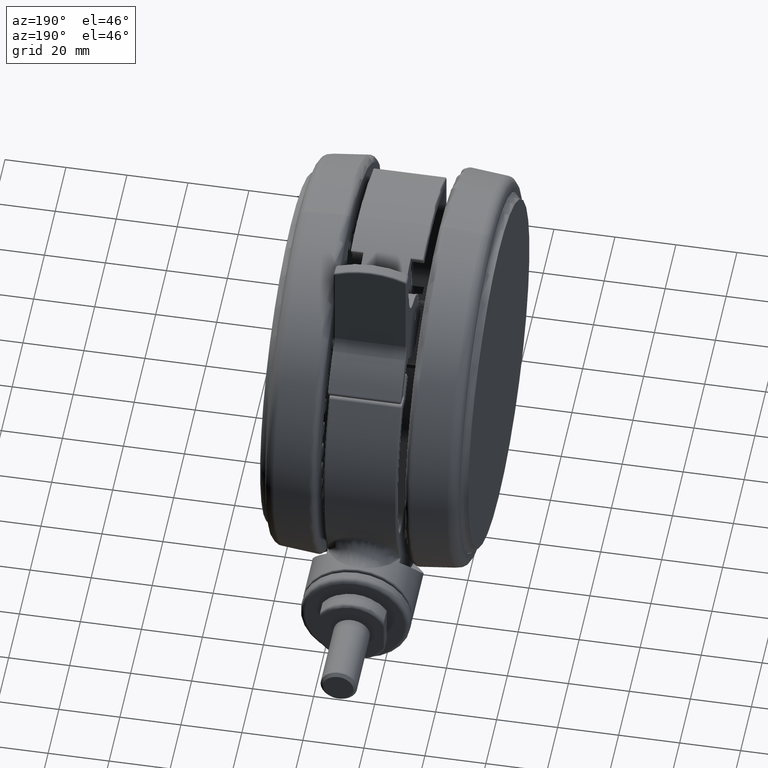
[diagram: clean part render]
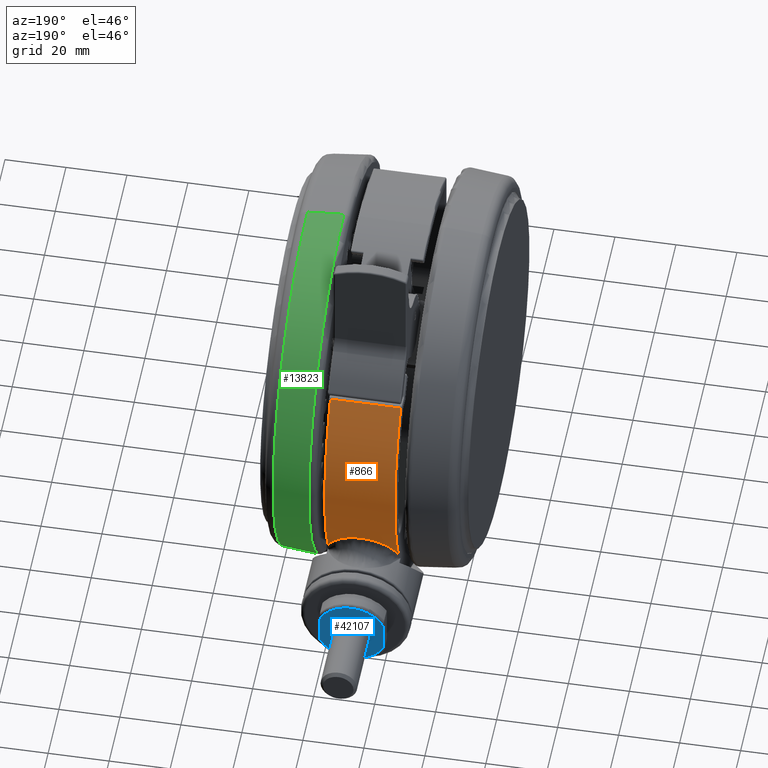
[diagram: same view with three faces highlighted in distinct colors, each labeled with its STEP entity id]
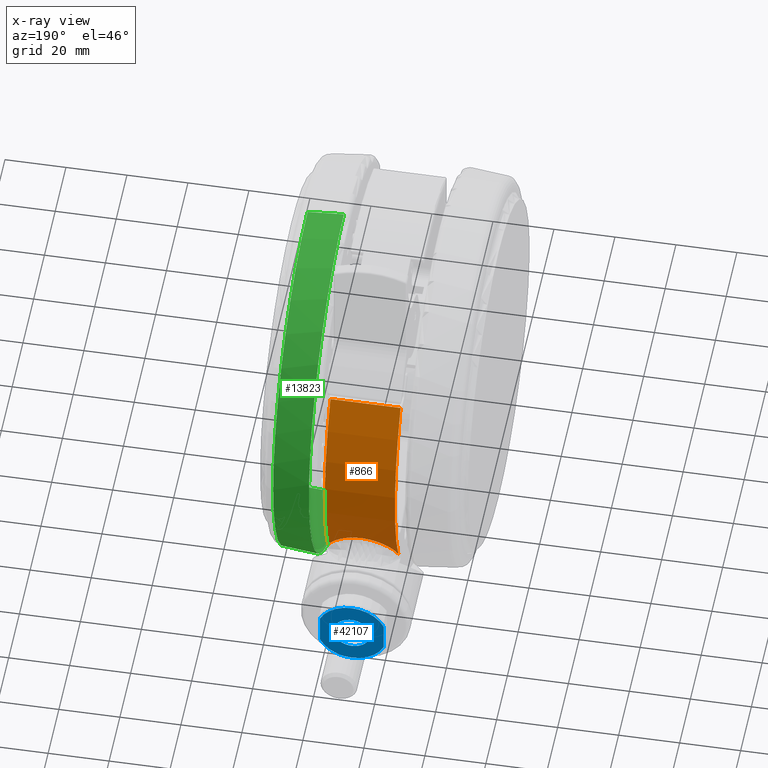
[diagram: x-ray of the same camera — body ghosted, the three highlighted faces saturated]
A machine part, auxiliary view with three faces highlighted in distinct colors.
The next image is the same camera in x-ray (body ghosted, the three faces saturated) — at least one of them is partly hidden behind the body in this view.
Their STEP definitions:

[orange] entity #866 — the highlighted cylindrical surface (partial cylindrical patch) has radius 65 mm, axis along (-1, 0, 0).
#866 = ADVANCED_FACE ( 'NONE', ( #67489 ), #17382, .T. ) ;
#1489 = VECTOR ( 'NONE', #38782, 1000.000000000000000 ) ;
#1585 = VERTEX_POINT ( 'NONE', #12320 ) ;
#3517 = CARTESIAN_POINT ( 'NONE',  ( 27.95437384687145200, 58.68178101843090400, -45.60001317750182900 ) ) ;
#4736 = CARTESIAN_POINT ( 'NONE',  ( 27.79232637209798500, 58.75890123488316200, -22.63798909152732700 ) ) ;
#4983 = CARTESIAN_POINT ( 'NONE',  ( 24.38946645385690500, 60.25139982984629200, -24.26384737465338800 ) ) ;
#5266 = CARTESIAN_POINT ( 'NONE',  ( 20.44288935957102300, 61.70165689065495900, -28.85910942607371200 ) ) ;
#5526 = CARTESIAN_POINT ( 'NONE',  ( 19.52615598186860500, 61.99781944255990900, -36.72101404127205600 ) ) ;
#5790 = CARTESIAN_POINT ( 'NONE',  ( 21.76791565473871500, 61.24679039606800800, -41.44564791617381200 ) ) ;
#6050 = CARTESIAN_POINT ( 'NONE',  ( 25.68911813592593100, 59.70913800842981800, -44.70101322627728300 ) ) ;
#9761 = ORIENTED_EDGE ( 'NONE', *, *, #25516, .T. ) ;
#11328 = CARTESIAN_POINT ( 'NONE',  ( 23.64653828361601000, 60.54676731015368300, -24.82376520894524300 ) ) ;
#11596 = CARTESIAN_POINT ( 'NONE',  ( 20.16148068567649100, 61.79430745747500700, -29.46952685547477200 ) ) ;
#11844 = CARTESIAN_POINT ( 'NONE',  ( 19.58523465069505700, 61.97918219874328100, -36.96602451009528100 ) ) ;
#12096 = CARTESIAN_POINT ( 'NONE',  ( 22.71460384025984800, 60.90410585044376300, -42.54105573440799000 ) ) ;
#12320 = CARTESIAN_POINT ( 'NONE',  ( -35.54687500000000000, 54.41892756876389800, -22.60000000000006900 ) ) ;
#12355 = CARTESIAN_POINT ( 'NONE',  ( 26.86298689317154500, 59.19017779428045100, -45.23463577216099200 ) ) ;
#16269 = DIRECTION ( 'NONE',  ( 0.0000000000000000000, 0.0000000000000000000, 1.000000000000000000 ) ) ;
#17357 = CARTESIAN_POINT ( 'NONE',  ( 27.44541606508240500, 58.92157019464794100, -22.74730794547513200 ) ) ;
#17382 = CYLINDRICAL_SURFACE ( 'NONE', #61781, 65.00000000000000000 ) ;
#17623 = CARTESIAN_POINT ( 'NONE',  ( 22.69148590163013400, 60.91271055391931800, -25.67161477966031700 ) ) ;
#17881 = CARTESIAN_POINT ( 'NONE',  ( 19.70776321033785900, 61.94039336677740000, -30.74381804980476600 ) ) ;
#18144 = CARTESIAN_POINT ( 'NONE',  ( 19.91594499075797800, 61.87404756975024600, -38.09847191439211400 ) ) ;
#18416 = CARTESIAN_POINT ( 'NONE',  ( 23.43163832220241400, 60.62981915594368600, -43.17996524113615900 ) ) ;
#18677 = CARTESIAN_POINT ( 'NONE',  ( 27.29120315660091100, 58.99318165434271300, -45.38961938130581300 ) ) ;
#19986 = EDGE_CURVE ( 'NONE', #37189, #1585, #68286, .T. ) ;
#23689 = CARTESIAN_POINT ( 'NONE',  ( 27.36336916197056000, 58.95970111128236400, -22.77472115942863700 ) ) ;
#23970 = CARTESIAN_POINT ( 'NONE',  ( 21.74756569991431800, 61.25401864652220500, -26.76867654488429300 ) ) ;
#24230 = CARTESIAN_POINT ( 'NONE',  ( 19.46034929420567700, 62.01853465009203600, -31.74024620383640600 ) ) ;
#24493 = CARTESIAN_POINT ( 'NONE',  ( 20.45259772501639300, 61.69856751788859100, -39.34500890495279200 ) ) ;
#24752 = CARTESIAN_POINT ( 'NONE',  ( 24.03853599999608200, 60.39264876353387700, -43.67055891784971100 ) ) ;
#25021 = CARTESIAN_POINT ( 'NONE',  ( 27.62053252951432800, 58.83998178103006900, -45.50066272967117700 ) ) ;
#25516 = EDGE_CURVE ( 'NONE', #1585, #45740, #73679, .T. ) ;
#25974 = EDGE_CURVE ( 'NONE', #39463, #37189, #44208, .T. ) ;
#30005 = CARTESIAN_POINT ( 'NONE',  ( 27.25667273886927300, 59.00915434209894500, -22.81098914732393400 ) ) ;
#30286 = CARTESIAN_POINT ( 'NONE',  ( 21.45418476367681700, 61.35738483624606900, -27.16199617994645600 ) ) ;
#30541 = CARTESIAN_POINT ( 'NONE',  ( 19.22436531436573000, 62.09205890737770500, -33.43434025363112000 ) ) ;
#30819 = CARTESIAN_POINT ( 'NONE',  ( 20.92787093554782300, 61.53904134677835500, -40.22387728630288000 ) ) ;
#31085 = CARTESIAN_POINT ( 'NONE',  ( 24.81591559312336100, 60.07653874074011900, -44.19546713594325400 ) ) ;
#31341 = CARTESIAN_POINT ( 'NONE',  ( 27.95437384687145200, 58.68178101843090400, -45.60001317750182900 ) ) ;
#33196 = EDGE_LOOP ( 'NONE', ( #55399, #77803, #57238, #9761 ) ) ;
#36332 = CARTESIAN_POINT ( 'NONE',  ( 26.53638836899736500, 59.33728492795938100, -23.08332653722088100 ) ) ;
#36424 = CARTESIAN_POINT ( 'NONE',  ( 0.0000000000000000000, 0.0000000000000000000, -22.60000000000006900 ) ) ;
#36599 = CARTESIAN_POINT ( 'NONE',  ( 20.91104773475947800, 61.54475527762041800, -27.98655297348422600 ) ) ;
#36866 = CARTESIAN_POINT ( 'NONE',  ( 19.28682181034139700, 62.07281407466353300, -35.46171010078335700 ) ) ;
#37135 = CARTESIAN_POINT ( 'NONE',  ( 21.37891699338514000, 61.38364179587569700, -40.91772146270345400 ) ) ;
#37189 = VERTEX_POINT ( 'NONE', #39903 ) ;
#37392 = CARTESIAN_POINT ( 'NONE',  ( 25.15169236763343400, 59.93661424670376900, -44.39846952754439300 ) ) ;
#37738 = B_SPLINE_CURVE_WITH_KNOTS ( 'NONE', 3,
 ( #48721, #4736, #54958, #17357, #61254, #23689, #67596, #30005, #73884, #36332, #80263, #42684, #4983, #48991, #11328, #55218, #17623, #61525, #23970, #67842, #30286, #74149, #36599, #80522, #42951, #5266, #49241, #11596, #55485, #17881, #61789, #24230, #68120, #30541, #74433, #36866, #80794, #43216, #5526, #49509, #11844, #55756, #18144, #62044, #24493, #68383, #30819, #74677, #37135, #81054, #43474, #5790, #49755, #12096, #56009, #18416, #62311, #24752, #68635, #31085, #74953, #37392, #81332, #43732, #6050, #50018, #12355, #56278, #18677, #62594, #25021, #68890, #31341 ),
 .UNSPECIFIED., .F., .F.,
 ( 4, 1, 1, 2, 2, 1, 2, 2, 2, 2, 2, 2, 1, 2, 2, 2, 1, 2, 2, 2, 2, 2, 2, 1, 1, 2, 2, 2, 2, 2, 2, 2, 1, 2, 2, 2, 1, 1, 2, 2, 1, 4 ),
 ( 0.1067419510894592100, 0.1190486621802158000, 0.1221253399529049600, 0.1236636788392495700, 0.1252020177255941900, 0.1313553732709725800, 0.1559687954524863800, 0.2051956398155139700, 0.2298090619970276100, 0.2544224841785412400, 0.3036493285415684500, 0.3159560396323252100, 0.3282627507230819200, 0.3528761729045951600, 0.3651828839953517600, 0.3774895950861083000, 0.4021030172676214900, 0.4267164394491346800, 0.4513298616306480900, 0.5005567059936749700, 0.5497835503567017900, 0.5620902614474584400, 0.5682436169928367600, 0.5743969725382150900, 0.5990103947197285000, 0.6236238169012419100, 0.6482372390827554300, 0.6728506612642688500, 0.6851573723550256100, 0.6974640834457823700, 0.7466909278088093000, 0.7589976388995658400, 0.7713043499903226000, 0.7959177721718361200, 0.8082244832625930000, 0.8143778388079716500, 0.8205311943533503100, 0.8451446165348656100, 0.8697580387163808000, 0.8759113942617594600, 0.8820647498071380000, 0.8943714608978949900 ),
 .UNSPECIFIED. ) ;
#38782 = DIRECTION ( 'NONE',  ( -0.0000000000000000000, -0.0000000000000000000, 1.000000000000000000 ) ) ;
#39463 = VERTEX_POINT ( 'NONE', #3517 ) ;
#39903 = CARTESIAN_POINT ( 'NONE',  ( -35.54687500000000000, 54.41892756876389800, -45.60000000000007200 ) ) ;
#40520 = DIRECTION ( 'NONE',  ( -1.000000000000000000, 0.0000000000000000000, 0.0000000000000000000 ) ) ;
#42684 = CARTESIAN_POINT ( 'NONE',  ( 25.16104298967593400, 59.93522284192272300, -23.75721250411366700 ) ) ;
#42775 = DIRECTION ( 'NONE',  ( 1.000000000000000000, -3.552713678800500900E-015, 0.0000000000000000000 ) ) ;
#42951 = CARTESIAN_POINT ( 'NONE',  ( 20.59217860871009600, 61.65199403560887200, -28.56394961350077800 ) ) ;
#43216 = CARTESIAN_POINT ( 'NONE',  ( 19.47014680937347500, 62.01544094387734400, -36.46947112115134400 ) ) ;
#43474 = CARTESIAN_POINT ( 'NONE',  ( 21.67015956479912500, 61.28144073425520600, -41.31869377111444700 ) ) ;
#43732 = CARTESIAN_POINT ( 'NONE',  ( 25.35360681897378400, 59.85148194636899900, -44.51417581782972400 ) ) ;
#44208 = CIRCLE ( 'NONE', #75954, 65.00000000000000000 ) ;
#45740 = VERTEX_POINT ( 'NONE', #48915 ) ;
#48721 = CARTESIAN_POINT ( 'NONE',  ( 27.92590306755449700, 58.69533635111779500, -22.59998678528584600 ) ) ;
#48837 = EDGE_CURVE ( 'NONE', #45740, #39463, #37738, .T. ) ;
#48915 = CARTESIAN_POINT ( 'NONE',  ( 27.92590306755449700, 58.69533635111779500, -22.59998678528584600 ) ) ;
#48991 = CARTESIAN_POINT ( 'NONE',  ( 24.13795755566093200, 60.35253772253094000, -24.44338225758372500 ) ) ;
#49241 = CARTESIAN_POINT ( 'NONE',  ( 20.37157209290337400, 61.72523377728598600, -29.00752762653992900 ) ) ;
#49509 = CARTESIAN_POINT ( 'NONE',  ( 19.54512131529279600, 61.99184361767516500, -36.80211477293095600 ) ) ;
#49755 = CARTESIAN_POINT ( 'NONE',  ( 22.27253549177076800, 61.06650419923458600, -42.07451242591226800 ) ) ;
#50018 = CARTESIAN_POINT ( 'NONE',  ( 26.30316968427618500, 59.44255489925022600, -45.00662855525664000 ) ) ;
#53905 = CARTESIAN_POINT ( 'NONE',  ( 0.0000000000000000000, 0.0000000000000000000, -45.60000000000007200 ) ) ;
#54958 = CARTESIAN_POINT ( 'NONE',  ( 27.62642517994137100, 58.83713431076597500, -22.68826808428833200 ) ) ;
#55218 = CARTESIAN_POINT ( 'NONE',  ( 23.40862095568921600, 60.63911217040720900, -25.02255636260865000 ) ) ;
#55399 = ORIENTED_EDGE ( 'NONE', *, *, #48837, .T. ) ;
#55485 = CARTESIAN_POINT ( 'NONE',  ( 19.90790737072405400, 61.87663068302234100, -30.09609914001382700 ) ) ;
#55756 = CARTESIAN_POINT ( 'NONE',  ( 19.68975077168373400, 61.94613803237425000, -37.37453438217104900 ) ) ;
#56009 = CARTESIAN_POINT ( 'NONE',  ( 23.31383103802730600, 60.67521521096313100, -43.07854949590887400 ) ) ;
#56278 = CARTESIAN_POINT ( 'NONE',  ( 27.21710659369537700, 59.02741044994478900, -45.36349939107010000 ) ) ;
#57238 = ORIENTED_EDGE ( 'NONE', *, *, #19986, .T. ) ;
#57390 = CARTESIAN_POINT ( 'NONE',  ( -35.54687500000000000, 54.41892756876389800, -22.10000000000006900 ) ) ;
#60195 = DIRECTION ( 'NONE',  ( 1.000000000000000000, 0.0000000000000000000, 0.0000000000000000000 ) ) ;
#61254 = CARTESIAN_POINT ( 'NONE',  ( 27.39617166329022500, 58.94446628159057900, -22.76371515054742600 ) ) ;
#61525 = CARTESIAN_POINT ( 'NONE',  ( 22.25067191259084300, 61.07446460647479100, -26.13959871664137000 ) ) ;
#61781 = AXIS2_PLACEMENT_3D ( 'NONE', #78086, #65420, #40520 ) ;
#61789 = CARTESIAN_POINT ( 'NONE',  ( 19.53446099107078700, 61.99526671427586400, -31.40211027222164500 ) ) ;
#62044 = CARTESIAN_POINT ( 'NONE',  ( 20.17088575764760300, 61.79124011712932000, -38.72578671634456500 ) ) ;
#62311 = CARTESIAN_POINT ( 'NONE',  ( 23.67213790501916600, 60.53632407365591200, -43.37910290245623900 ) ) ;
#62594 = CARTESIAN_POINT ( 'NONE',  ( 27.42267506145585200, 58.93218258227798100, -45.43470148881331000 ) ) ;
#65420 = DIRECTION ( 'NONE',  ( 0.0000000000000000000, 0.0000000000000000000, -1.000000000000000000 ) ) ;
#67489 = FACE_OUTER_BOUND ( 'NONE', #33196, .T. ) ;
#67596 = CARTESIAN_POINT ( 'NONE',  ( 27.34814487594782800, 58.96676503255361000, -22.77986088566700600 ) ) ;
#67842 = CARTESIAN_POINT ( 'NONE',  ( 21.64952585980088200, 61.28873263384547000, -26.89637461909766400 ) ) ;
#68120 = CARTESIAN_POINT ( 'NONE',  ( 19.28304060778433600, 62.07398556647676500, -32.75484630788786700 ) ) ;
#68286 = LINE ( 'NONE', #57390, #1489 ) ;
#68383 = CARTESIAN_POINT ( 'NONE',  ( 20.60295828151467000, 61.64858069595445800, -39.64227792800731000 ) ) ;
#68635 = CARTESIAN_POINT ( 'NONE',  ( 24.42173400849698300, 60.23835657775620700, -43.94026350348315900 ) ) ;
#68890 = CARTESIAN_POINT ( 'NONE',  ( 27.82032428552507900, 58.74565176112127300, -45.56163820931893600 ) ) ;
#70661 = AXIS2_PLACEMENT_3D ( 'NONE', #36424, #80349, #42775 ) ;
#73679 = CIRCLE ( 'NONE', #70661, 65.00000000000000000 ) ;
#73884 = CARTESIAN_POINT ( 'NONE',  ( 26.89241669005522400, 59.17712756015789200, -22.93883237918613500 ) ) ;
#74149 = CARTESIAN_POINT ( 'NONE',  ( 21.16972210647392700, 61.45657141387963700, -27.56596694341793000 ) ) ;
#74433 = CARTESIAN_POINT ( 'NONE',  ( 19.22636675363504800, 62.09143920503182600, -34.78746132980300100 ) ) ;
#74677 = CARTESIAN_POINT ( 'NONE',  ( 21.10159326407777400, 61.47976129959460000, -40.50638821008343600 ) ) ;
#74953 = CARTESIAN_POINT ( 'NONE',  ( 24.94913981047005800, 60.02134493640235000, -44.27811818790105000 ) ) ;
#75954 = AXIS2_PLACEMENT_3D ( 'NONE', #53905, #16269, #60195 ) ;
#77803 = ORIENTED_EDGE ( 'NONE', *, *, #25974, .T. ) ;
#78086 = CARTESIAN_POINT ( 'NONE',  ( 0.0000000000000000000, 0.0000000000000000000, -22.10000000000006900 ) ) ;
#80263 = CARTESIAN_POINT ( 'NONE',  ( 25.69817246601970600, 59.70742912799946100, -23.46208229475553600 ) ) ;
#80349 = DIRECTION ( 'NONE',  ( -0.0000000000000000000, -0.0000000000000000000, -1.000000000000000000 ) ) ;
#80522 = CARTESIAN_POINT ( 'NONE',  ( 20.66972691797241500, 61.62604639292821000, -28.41821584794706700 ) ) ;
#80794 = CARTESIAN_POINT ( 'NONE',  ( 19.43650582107547100, 62.02598830639885800, -36.30163135562678200 ) ) ;
#81054 = CARTESIAN_POINT ( 'NONE',  ( 21.47414799631831200, 61.35040148085507600, -41.05276035806832600 ) ) ;
#81332 = CARTESIAN_POINT ( 'NONE',  ( 25.21985554605142000, 59.90796404605941900, -44.43807676528508200 ) ) ;

[blue] entity #42107 — the highlighted planar face has unit normal (0, -1, -0).
#953 = VERTEX_POINT ( 'NONE', #79192 ) ;
#1266 = EDGE_LOOP ( 'NONE', ( #13839, #44052 ) ) ;
#3313 = CARTESIAN_POINT ( 'NONE',  ( 45.00000000000000700, 79.99999999999998600, -34.10000000000006500 ) ) ;
#7586 = EDGE_CURVE ( 'NONE', #13236, #52025, #15639, .T. ) ;
#9625 = DIRECTION ( 'NONE',  ( 0.0000000000000000000, 0.0000000000000000000, -1.000000000000000000 ) ) ;
#11347 = EDGE_CURVE ( 'NONE', #13236, #78230, #74945, .T. ) ;
#13236 = VERTEX_POINT ( 'NONE', #43627 ) ;
#13453 = CARTESIAN_POINT ( 'NONE',  ( 49.69041575982343800, 79.99999999999998600, -23.60000000000006500 ) ) ;
#13839 = ORIENTED_EDGE ( 'NONE', *, *, #39411, .T. ) ;
#14798 = CARTESIAN_POINT ( 'NONE',  ( 40.30958424017657600, 79.99999999999998600, -23.60000000000006500 ) ) ;
#15639 = CIRCLE ( 'NONE', #58521, 11.50000000000000400 ) ;
#15726 = AXIS2_PLACEMENT_3D ( 'NONE', #3313, #47286, #9625 ) ;
#15936 = CIRCLE ( 'NONE', #43804, 5.999999999999998200 ) ;
#16492 = DIRECTION ( 'NONE',  ( -2.292630248676145000E-016, 1.000000000000000000, -8.135128085091679000E-031 ) ) ;
#19135 = CIRCLE ( 'NONE', #15726, 5.999999999999998200 ) ;
#19762 = ORIENTED_EDGE ( 'NONE', *, *, #65797, .F. ) ;
#20193 = EDGE_CURVE ( 'NONE', #953, #34938, #19135, .T. ) ;
#21531 = CARTESIAN_POINT ( 'NONE',  ( 45.00000000000000000, 79.99999999999998600, -28.10000000000006900 ) ) ;
#21939 = CARTESIAN_POINT ( 'NONE',  ( 45.00000000000000700, 79.99999999999998600, -34.10000000000006500 ) ) ;
#22377 = AXIS2_PLACEMENT_3D ( 'NONE', #22648, #78935, #35298 ) ;
#22648 = CARTESIAN_POINT ( 'NONE',  ( 45.00000000000000700, 79.99999999999998600, -34.10000000000006500 ) ) ;
#24057 = CARTESIAN_POINT ( 'NONE',  ( 45.00000000000000700, 79.99999999999998600, -34.10000000000006500 ) ) ;
#28232 = DIRECTION ( 'NONE',  ( 0.0000000000000000000, 0.0000000000000000000, -1.000000000000000000 ) ) ;
#28923 = CARTESIAN_POINT ( 'NONE',  ( 51.78232998312528000, 79.99999999999998600, -23.60000000000006500 ) ) ;
#28945 = PLANE ( 'NONE',  #22377 ) ;
#29000 = AXIS2_PLACEMENT_3D ( 'NONE', #24057, #67944, #30373 ) ;
#30373 = DIRECTION ( 'NONE',  ( 0.0000000000000000000, 0.0000000000000000000, -1.000000000000000000 ) ) ;
#30542 = CIRCLE ( 'NONE', #29000, 11.50000000000000400 ) ;
#31885 = CARTESIAN_POINT ( 'NONE',  ( 49.69041575982343800, 79.99999999999998600, -44.60000000000007200 ) ) ;
#34938 = VERTEX_POINT ( 'NONE', #21531 ) ;
#35298 = DIRECTION ( 'NONE',  ( 0.0000000000000000000, -8.242980161977369500E-031, -1.000000000000000000 ) ) ;
#39411 = EDGE_CURVE ( 'NONE', #34938, #953, #15936, .T. ) ;
#42107 = ADVANCED_FACE ( 'NONE', ( #75207, #79214 ), #28945, .F. ) ;
#43627 = CARTESIAN_POINT ( 'NONE',  ( 40.30958424017657600, 79.99999999999998600, -44.60000000000007200 ) ) ;
#43804 = AXIS2_PLACEMENT_3D ( 'NONE', #21939, #65810, #28232 ) ;
#43838 = ORIENTED_EDGE ( 'NONE', *, *, #11347, .F. ) ;
#44052 = ORIENTED_EDGE ( 'NONE', *, *, #20193, .T. ) ;
#46268 = EDGE_CURVE ( 'NONE', #64486, #78230, #30542, .T. ) ;
#47286 = DIRECTION ( 'NONE',  ( 2.292630248676145000E-016, -1.000000000000000000, 8.135128085091679000E-031 ) ) ;
#49046 = ORIENTED_EDGE ( 'NONE', *, *, #7586, .T. ) ;
#52025 = VERTEX_POINT ( 'NONE', #14798 ) ;
#52092 = CARTESIAN_POINT ( 'NONE',  ( 51.78232998312528000, 79.99999999999998600, -44.60000000000007200 ) ) ;
#52600 = ORIENTED_EDGE ( 'NONE', *, *, #46268, .T. ) ;
#54103 = CARTESIAN_POINT ( 'NONE',  ( 45.00000000000000700, 79.99999999999998600, -34.10000000000006500 ) ) ;
#58521 = AXIS2_PLACEMENT_3D ( 'NONE', #54103, #16492, #60395 ) ;
#60031 = VECTOR ( 'NONE', #72816, 1000.000000000000000 ) ;
#60395 = DIRECTION ( 'NONE',  ( 0.0000000000000000000, 0.0000000000000000000, -1.000000000000000000 ) ) ;
#64486 = VERTEX_POINT ( 'NONE', #13453 ) ;
#65797 = EDGE_CURVE ( 'NONE', #64486, #52025, #76718, .T. ) ;
#65810 = DIRECTION ( 'NONE',  ( 2.292630248676145000E-016, -1.000000000000000000, 8.135128085091679000E-031 ) ) ;
#67944 = DIRECTION ( 'NONE',  ( -2.292630248676145000E-016, 1.000000000000000000, -8.135128085091679000E-031 ) ) ;
#70710 = DIRECTION ( 'NONE',  ( 1.000000000000000000, 2.292630248676145000E-016, 0.0000000000000000000 ) ) ;
#71011 = VECTOR ( 'NONE', #70710, 1000.000000000000000 ) ;
#72019 = EDGE_LOOP ( 'NONE', ( #43838, #49046, #19762, #52600 ) ) ;
#72816 = DIRECTION ( 'NONE',  ( -1.000000000000000000, -2.292630248676145000E-016, 0.0000000000000000000 ) ) ;
#74945 = LINE ( 'NONE', #52092, #71011 ) ;
#75207 = FACE_BOUND ( 'NONE', #1266, .T. ) ;
#76718 = LINE ( 'NONE', #28923, #60031 ) ;
#78230 = VERTEX_POINT ( 'NONE', #31885 ) ;
#78935 = DIRECTION ( 'NONE',  ( 2.292630248676145000E-016, -1.000000000000000000, 8.242980161977369500E-031 ) ) ;
#79192 = CARTESIAN_POINT ( 'NONE',  ( 45.00000000000000000, 79.99999999999998600, -40.10000000000006500 ) ) ;
#79214 = FACE_OUTER_BOUND ( 'NONE', #72019, .T. ) ;

[green] entity #13823 — the highlighted conical surface has half-angle 4.961 deg.
#68 = CARTESIAN_POINT ( 'NONE',  ( -63.95688609912403400, -2.775557561562891400E-014, -5.497303234679479000 ) ) ;
#4061 = CARTESIAN_POINT ( 'NONE',  ( 63.95688609912409100, -2.775557561562891400E-014, -5.497303234679479000 ) ) ;
#5869 = CARTESIAN_POINT ( 'NONE',  ( 64.99250634235663400, -1.979628912955580400E-014, -17.42703041981686600 ) ) ;
#8036 = CARTESIAN_POINT ( 'NONE',  ( -64.99250634235657700, -2.775557561562891400E-014, -17.42703041981686600 ) ) ;
#10305 = EDGE_LOOP ( 'NONE', ( #27945, #69679, #18164, #67008 ) ) ;
#13530 = CARTESIAN_POINT ( 'NONE',  ( 2.775557561562891400E-014, -2.775557561562891400E-014, -17.42703041981686600 ) ) ;
#13754 = FACE_OUTER_BOUND ( 'NONE', #10305, .T. ) ;
#13823 = ADVANCED_FACE ( 'NONE', ( #13754 ), #26530, .T. ) ;
#14636 = AXIS2_PLACEMENT_3D ( 'NONE', #74111, #36553, #80482 ) ;
#14864 = DIRECTION ( 'NONE',  ( 0.08648479009161678900, 1.059133213606292300E-017, -0.9962531711782949300 ) ) ;
#18164 = ORIENTED_EDGE ( 'NONE', *, *, #23162, .T. ) ;
#18212 = DIRECTION ( 'NONE',  ( -1.000000000000000000, 0.0000000000000000000, 0.0000000000000000000 ) ) ;
#18420 = VERTEX_POINT ( 'NONE', #57715 ) ;
#19856 = DIRECTION ( 'NONE',  ( 1.000000000000000000, 0.0000000000000000000, 0.0000000000000000000 ) ) ;
#23162 = EDGE_CURVE ( 'NONE', #47000, #65740, #70975, .T. ) ;
#26530 = CONICAL_SURFACE ( 'NONE', #59515, 63.95688609912406300, 0.08659296680489261800 ) ;
#27945 = ORIENTED_EDGE ( 'NONE', *, *, #72754, .F. ) ;
#28995 = AXIS2_PLACEMENT_3D ( 'NONE', #13530, #57441, #19856 ) ;
#32081 = LINE ( 'NONE', #65073, #61511 ) ;
#36553 = DIRECTION ( 'NONE',  ( 0.0000000000000000000, 0.0000000000000000000, 1.000000000000000000 ) ) ;
#37199 = CARTESIAN_POINT ( 'NONE',  ( 2.775557561562891400E-014, -2.775557561562891400E-014, -5.497303234679479000 ) ) ;
#37719 = DIRECTION ( 'NONE',  ( -0.08648479009161678900, 0.0000000000000000000, -0.9962531711782949300 ) ) ;
#40782 = VECTOR ( 'NONE', #37719, 1000.000000000000000 ) ;
#47000 = VERTEX_POINT ( 'NONE', #5869 ) ;
#54483 = VERTEX_POINT ( 'NONE', #4061 ) ;
#57441 = DIRECTION ( 'NONE',  ( 0.0000000000000000000, 0.0000000000000000000, 1.000000000000000000 ) ) ;
#57715 = CARTESIAN_POINT ( 'NONE',  ( -63.95688609912403400, -1.992311603115649900E-014, -5.497303234679479000 ) ) ;
#59515 = AXIS2_PLACEMENT_3D ( 'NONE', #37199, #81118, #18212 ) ;
#61511 = VECTOR ( 'NONE', #14864, 1000.000000000000000 ) ;
#62525 = EDGE_CURVE ( 'NONE', #54483, #47000, #32081, .T. ) ;
#65073 = CARTESIAN_POINT ( 'NONE',  ( 63.95688609912409100, -1.992311603115649900E-014, -5.497303234679479000 ) ) ;
#65740 = VERTEX_POINT ( 'NONE', #8036 ) ;
#67008 = ORIENTED_EDGE ( 'NONE', *, *, #72288, .F. ) ;
#69679 = ORIENTED_EDGE ( 'NONE', *, *, #62525, .T. ) ;
#70071 = CIRCLE ( 'NONE', #14636, 63.95688609912406300 ) ;
#70975 = CIRCLE ( 'NONE', #28995, 64.99250634235660600 ) ;
#72144 = LINE ( 'NONE', #68, #40782 ) ;
#72288 = EDGE_CURVE ( 'NONE', #18420, #65740, #72144, .T. ) ;
#72754 = EDGE_CURVE ( 'NONE', #54483, #18420, #70071, .T. ) ;
#74111 = CARTESIAN_POINT ( 'NONE',  ( 2.775557561562891400E-014, -2.775557561562891400E-014, -5.497303234679479000 ) ) ;
#80482 = DIRECTION ( 'NONE',  ( 1.000000000000000000, 0.0000000000000000000, 0.0000000000000000000 ) ) ;
#81118 = DIRECTION ( 'NONE',  ( -0.0000000000000000000, -0.0000000000000000000, -1.000000000000000000 ) ) ;